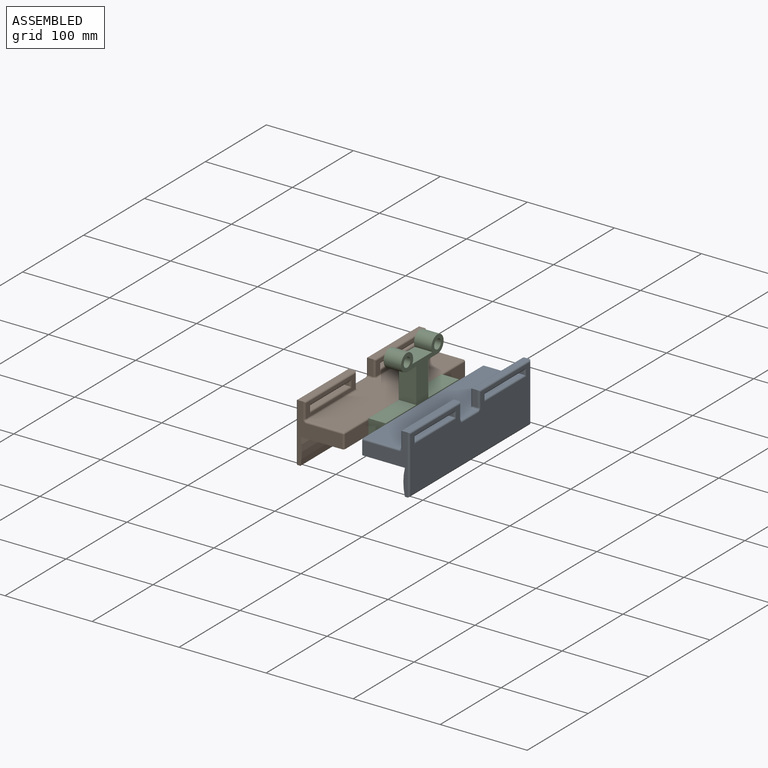
[diagram: assembled view]
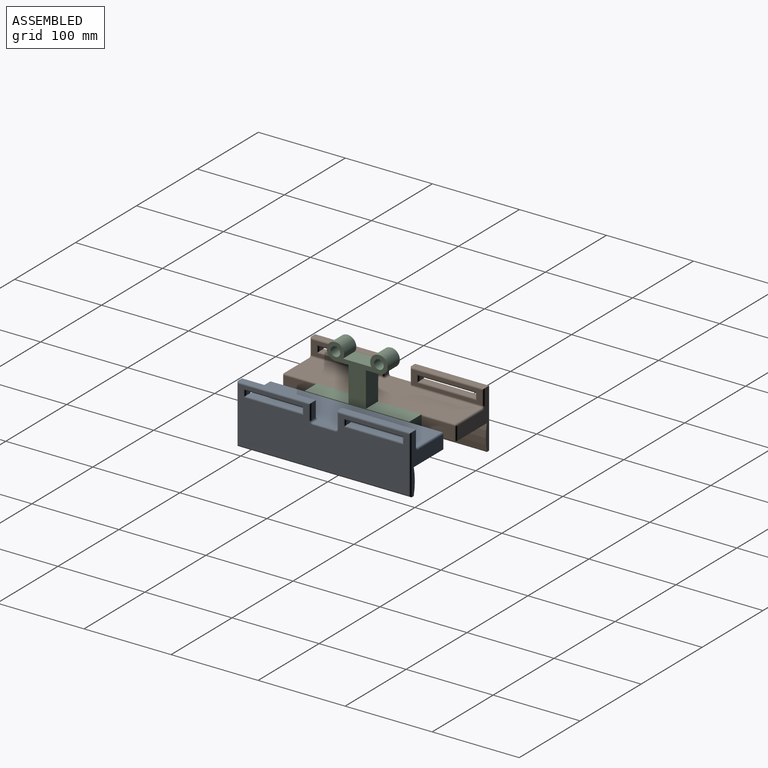
[diagram: assembled view, second angle]
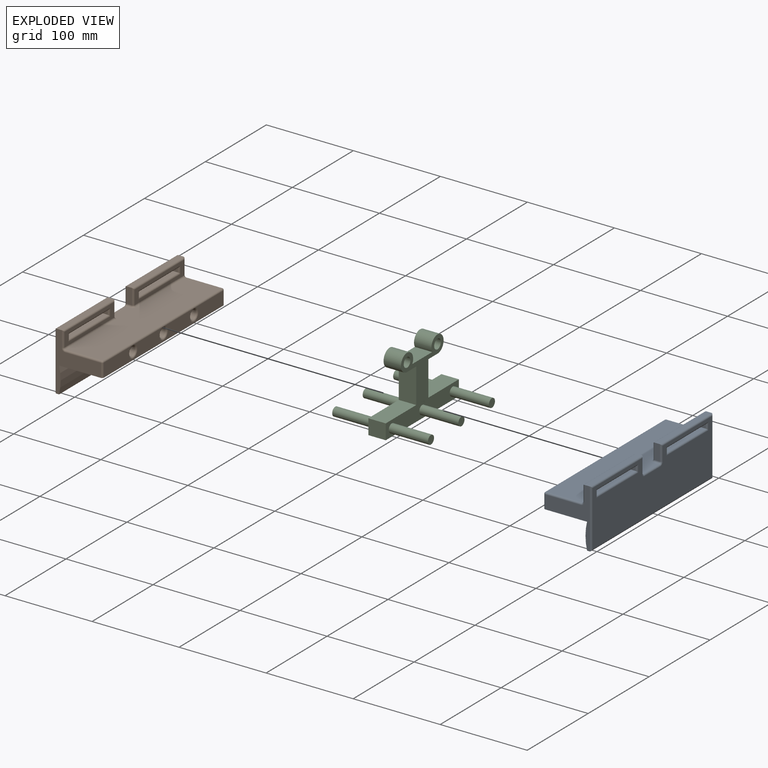
[diagram: exploded view]
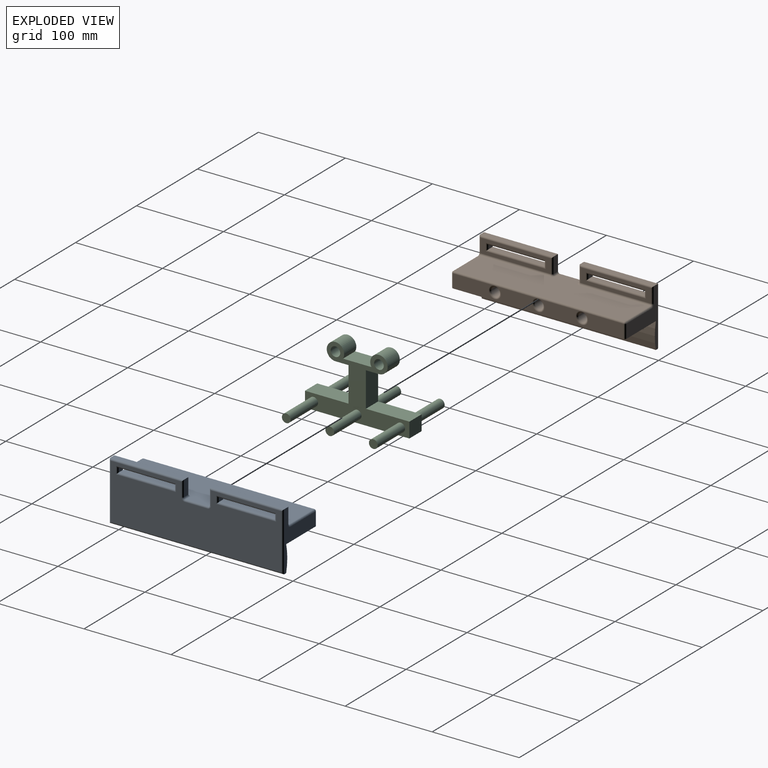
[diagram: exploded view, second angle]
ASSEMBLY  parts=3 mates=2
PART A: 78 faces, bbox 55x200x67.5 mm
  f0: plane 196x63.5mm, normal (1,0,0), area 10530.9mm2, adj f28,f29,f30,f32,f33,f37,f38,f41
  f1: plane 81x16mm, normal (-1,0,0), area 675mm2, adj f31,f36,f39,f40,f62,f63,f64,f65
  f2: plane 81x16mm, normal (-1,0,0), area 675mm2, adj f47,f53,f57,f58,f66,f67,f68,f69
  f3: plane 196x51mm, normal (0,0,1), area 8302.9mm2, adj f34,f35,f39,f42,f45,f48,f54,f55
  f4: plane 200x3mm, normal (0,0,-1), area 600mm2, adj f7,f8,f9,f29
  f5: plane 196x15.5mm, normal (-1,0,0), area 2560mm2, adj f6,f46,f50,f51,f52,f55,f56
  f6: plane 200x50mm, normal (0,0,-1), area 9998.3mm2, adj f5,f7,f8,f9,f46,f56
  f7: cylinder r=65mm len=200mm, axis (0,1,0), area 6054.6mm2, adj f4,f6,f8,f9
  f8: plane 67.5x51mm, normal (0,-1,0), area 1051.1mm2, adj f4,f6,f7,f10,f28,f40,f43,f45
  f9: plane 67.5x51mm, normal (0,1,0), area 1051.1mm2, adj f4,f6,f7,f12,f32,f56,f57,f60
  f10: plane 85x6mm, normal (0,0,1), area 510mm2, adj f8,f11,f30,f36
  f11: plane 18x6mm, normal (0,1,0), area 108mm2, adj f10,f31,f33,f34
  f12: plane 85x6mm, normal (0,0,1), area 510mm2, adj f9,f13,f37,f53
  f13: plane 18x6mm, normal (0,-1,0), area 108mm2, adj f12,f41,f47,f48
  f14: plane 65x6mm, normal (0,0,-1), area 390mm2, adj f15,f17,f69,f70
  f15: plane 6x5mm, normal (0,1,0), area 30mm2, adj f14,f16,f67,f72
  f16: plane 65x6mm, normal (0,0,1), area 390mm2, adj f15,f17,f66,f73
  f17: plane 6x5mm, normal (0,-1,0), area 30mm2, adj f14,f16,f68,f71
  f18: plane 65x6mm, normal (0,0,-1), area 390mm2, adj f19,f21,f65,f76
  f19: plane 6x5mm, normal (0,1,0), area 30mm2, adj f18,f20,f64,f77
  f20: plane 65x6mm, normal (0,0,1), area 390mm2, adj f19,f21,f62,f75
  f21: plane 6x5mm, normal (0,-1,0), area 30mm2, adj f18,f20,f63,f74
  f22: cylinder r=5.15mm len=43mm, axis (-1,0,0), area 1391.4mm2, adj f23,f51
  f23: plane 10.3x10.3mm, normal (-1,0,0), area 83.3mm2, adj f22
  f24: cylinder r=5.15mm len=43mm, axis (-1,0,0), area 1391.4mm2, adj f25,f50
  f25: plane 10.3x10.3mm, normal (-1,0,0), area 83.3mm2, adj f24
  f26: cylinder r=5.15mm len=43mm, axis (-1,0,0), area 1391.4mm2, adj f27,f52
  f27: plane 10.3x10.3mm, normal (-1,0,0), area 83.3mm2, adj f26
  f28: cylinder r=2mm len=67.5mm, axis (0,0,-1), area 207.5mm2, adj f0,f8,f29,f30
  f29: cylinder r=2mm len=200mm, axis (0,1,0), area 623.8mm2, adj f0,f4,f28,f32
  f30: cylinder r=2mm len=85mm, axis (0,1,0), area 262.5mm2, adj f0,f10,f28,f33
  f31: cylinder r=2mm len=18mm, axis (0,0,-1), area 54.3mm2, adj f1,f11,f35,f36
  f32: cylinder r=2mm len=67.5mm, axis (0,0,1), area 207.5mm2, adj f0,f9,f29,f37
  f33: cylinder r=2mm len=18mm, axis (0,0,1), area 54.3mm2, adj f0,f11,f30,f38
  f34: cylinder r=2mm len=6mm, axis (1,0,0), area 18.8mm2, adj f3,f11,f35,f38
  f35: torus R=4mm, axis (0,0,1), area 13.5mm2, adj f3,f31,f34,f39
  f36: cylinder r=2mm len=85mm, axis (0,1,0), area 262.5mm2, adj f1,f10,f31,f40
  f37: cylinder r=2mm len=85mm, axis (0,1,0), area 262.5mm2, adj f0,f12,f32,f41
  f38: torus R=4mm, axis (1,0,0), area 13.5mm2, adj f0,f33,f34,f42
  f39: cylinder r=2mm len=81mm, axis (0,-1,0), area 254.5mm2, adj f1,f3,f35,f43
  f40: cylinder r=2mm len=18mm, axis (0,0,1), area 54.3mm2, adj f1,f8,f36,f43
  f41: cylinder r=2mm len=18mm, axis (0,0,-1), area 54.3mm2, adj f0,f13,f37,f44
  f42: cylinder r=2mm len=26mm, axis (0,1,0), area 81.7mm2, adj f0,f3,f38,f44
  f43: torus R=4mm, axis (0,-1,0), area 13.5mm2, adj f8,f39,f40,f45
  f44: torus R=4mm, axis (1,0,0), area 13.5mm2, adj f0,f41,f42,f48
  f45: cylinder r=2mm len=41mm, axis (1,0,0), area 128.8mm2, adj f3,f8,f43,f49
  f46: cylinder r=2mm len=15.5mm, axis (0,0,1), area 48.7mm2, adj f5,f6,f8,f49
  f47: cylinder r=2mm len=18mm, axis (0,0,-1), area 54.3mm2, adj f2,f13,f53,f54
  f48: cylinder r=2mm len=6mm, axis (-1,0,0), area 18.8mm2, adj f3,f13,f44,f54
  f49: sphere r=2mm, area 6.3mm2, adj f45,f46,f55
  f50: torus R=7.15mm, axis (-1,0,0), area 115.4mm2, adj f5,f24,f55
  f51: torus R=7.15mm, axis (-1,0,0), area 115.4mm2, adj f5,f22,f55
  f52: torus R=7.15mm, axis (-1,0,0), area 115.4mm2, adj f5,f26,f55
  f53: cylinder r=2mm len=85mm, axis (0,-1,0), area 262.5mm2, adj f2,f12,f47,f57
  f54: torus R=4mm, axis (0,0,1), area 13.5mm2, adj f3,f47,f48,f58
  f55: cylinder r=2mm len=196mm, axis (0,1,0), area 613.9mm2, adj f3,f5,f49,f50,f51,f52,f59
  f56: cylinder r=2mm len=15.5mm, axis (0,0,-1), area 48.7mm2, adj f5,f6,f9,f59
  f57: cylinder r=2mm len=18mm, axis (0,0,1), area 54.3mm2, adj f2,f9,f53,f60
  f58: cylinder r=2mm len=81mm, axis (0,-1,0), area 254.5mm2, adj f2,f3,f54,f60
  f59: sphere r=2mm, area 6.3mm2, adj f55,f56,f61
  f60: torus R=4mm, axis (0,-1,0), area 13.5mm2, adj f9,f57,f58,f61
  f61: cylinder r=2mm len=41mm, axis (-1,0,0), area 128.8mm2, adj f3,f9,f59,f60
  f62: cylinder r=2mm len=69mm, axis (0,1,0), area 208.8mm2, adj f1,f20,f63,f64
  f63: cylinder r=2mm len=9mm, axis (0,0,1), area 20.3mm2, adj f1,f21,f62,f65
  f64: cylinder r=2mm len=9mm, axis (0,0,-1), area 20.3mm2, adj f1,f19,f62,f65
  f65: cylinder r=2mm len=69mm, axis (0,-1,0), area 208.8mm2, adj f1,f18,f63,f64
  f66: cylinder r=2mm len=69mm, axis (0,1,0), area 208.8mm2, adj f2,f16,f67,f68
  f67: cylinder r=2mm len=9mm, axis (0,0,-1), area 20.3mm2, adj f2,f15,f66,f69
  f68: cylinder r=2mm len=9mm, axis (0,0,1), area 20.3mm2, adj f2,f17,f66,f69
  f69: cylinder r=2mm len=69mm, axis (0,-1,0), area 208.8mm2, adj f2,f14,f67,f68
  f70: cylinder r=2mm len=69mm, axis (0,1,0), area 208.8mm2, adj f0,f14,f71,f72
  f71: cylinder r=2mm len=9mm, axis (0,0,-1), area 20.3mm2, adj f0,f17,f70,f73
  f72: cylinder r=2mm len=9mm, axis (0,0,1), area 20.3mm2, adj f0,f15,f70,f73
  f73: cylinder r=2mm len=69mm, axis (0,-1,0), area 208.8mm2, adj f0,f16,f71,f72
  f74: cylinder r=2mm len=9mm, axis (0,0,-1), area 20.3mm2, adj f0,f21,f75,f76
  f75: cylinder r=2mm len=69mm, axis (0,-1,0), area 208.8mm2, adj f0,f20,f74,f77
  f76: cylinder r=2mm len=69mm, axis (0,1,0), area 208.8mm2, adj f0,f18,f74,f77
  f77: cylinder r=2mm len=9mm, axis (0,0,1), area 20.3mm2, adj f0,f19,f75,f76
PART B: 78 faces, bbox 55x200x67.5 mm
  f0: plane 196x63.5mm, normal (-1,0,0), area 10530.9mm2, adj f28,f29,f30,f32,f33,f37,f38,f41
  f1: plane 81x16mm, normal (1,0,0), area 675mm2, adj f31,f36,f39,f40,f62,f63,f64,f65
  f2: plane 81x16mm, normal (1,0,0), area 675mm2, adj f47,f53,f57,f58,f66,f67,f68,f69
  f3: plane 196x51mm, normal (0,0,1), area 8302.9mm2, adj f34,f35,f39,f42,f45,f48,f54,f55
  f4: plane 200x3mm, normal (0,0,-1), area 600mm2, adj f7,f8,f9,f29
  f5: plane 196x15.5mm, normal (1,0,0), area 2560mm2, adj f6,f46,f50,f51,f52,f55,f56
  f6: plane 200x50mm, normal (0,0,-1), area 9998.3mm2, adj f5,f7,f8,f9,f46,f56
  f7: cylinder r=65mm len=200mm, axis (0,1,0), area 6054.6mm2, adj f4,f6,f8,f9
  f8: plane 67.5x51mm, normal (0,-1,0), area 1051.1mm2, adj f4,f6,f7,f10,f28,f40,f43,f45
  f9: plane 67.5x51mm, normal (0,1,0), area 1051.1mm2, adj f4,f6,f7,f12,f32,f56,f57,f60
  f10: plane 85x6mm, normal (0,0,1), area 510mm2, adj f8,f11,f30,f36
  f11: plane 18x6mm, normal (0,1,0), area 108mm2, adj f10,f31,f33,f34
  f12: plane 85x6mm, normal (0,0,1), area 510mm2, adj f9,f13,f37,f53
  f13: plane 18x6mm, normal (0,-1,0), area 108mm2, adj f12,f41,f47,f48
  f14: plane 65x6mm, normal (0,0,-1), area 390mm2, adj f15,f17,f69,f70
  f15: plane 6x5mm, normal (0,1,0), area 30mm2, adj f14,f16,f67,f72
  f16: plane 65x6mm, normal (0,0,1), area 390mm2, adj f15,f17,f66,f73
  f17: plane 6x5mm, normal (0,-1,0), area 30mm2, adj f14,f16,f68,f71
  f18: plane 65x6mm, normal (0,0,-1), area 390mm2, adj f19,f21,f65,f76
  f19: plane 6x5mm, normal (0,1,0), area 30mm2, adj f18,f20,f64,f77
  f20: plane 65x6mm, normal (0,0,1), area 390mm2, adj f19,f21,f62,f75
  f21: plane 6x5mm, normal (0,-1,0), area 30mm2, adj f18,f20,f63,f74
  f22: cylinder r=5.15mm len=43mm, axis (1,0,0), area 1391.4mm2, adj f23,f51
  f23: plane 10.3x10.3mm, normal (1,0,0), area 83.3mm2, adj f22
  f24: cylinder r=5.15mm len=43mm, axis (1,0,0), area 1391.4mm2, adj f25,f50
  f25: plane 10.3x10.3mm, normal (1,0,0), area 83.3mm2, adj f24
  f26: cylinder r=5.15mm len=43mm, axis (1,0,0), area 1391.4mm2, adj f27,f52
  f27: plane 10.3x10.3mm, normal (1,0,0), area 83.3mm2, adj f26
  f28: cylinder r=2mm len=67.5mm, axis (0,0,-1), area 207.5mm2, adj f0,f8,f29,f30
  f29: cylinder r=2mm len=200mm, axis (0,1,0), area 623.8mm2, adj f0,f4,f28,f32
  f30: cylinder r=2mm len=85mm, axis (0,1,0), area 262.5mm2, adj f0,f10,f28,f33
  f31: cylinder r=2mm len=18mm, axis (0,0,-1), area 54.3mm2, adj f1,f11,f35,f36
  f32: cylinder r=2mm len=67.5mm, axis (0,0,1), area 207.5mm2, adj f0,f9,f29,f37
  f33: cylinder r=2mm len=18mm, axis (0,0,1), area 54.3mm2, adj f0,f11,f30,f38
  f34: cylinder r=2mm len=6mm, axis (-1,0,0), area 18.8mm2, adj f3,f11,f35,f38
  f35: torus R=4mm, axis (0,0,1), area 13.5mm2, adj f3,f31,f34,f39
  f36: cylinder r=2mm len=85mm, axis (0,1,0), area 262.5mm2, adj f1,f10,f31,f40
  f37: cylinder r=2mm len=85mm, axis (0,1,0), area 262.5mm2, adj f0,f12,f32,f41
  f38: torus R=4mm, axis (-1,0,0), area 13.5mm2, adj f0,f33,f34,f42
  f39: cylinder r=2mm len=81mm, axis (0,-1,0), area 254.5mm2, adj f1,f3,f35,f43
  f40: cylinder r=2mm len=18mm, axis (0,0,1), area 54.3mm2, adj f1,f8,f36,f43
  f41: cylinder r=2mm len=18mm, axis (0,0,-1), area 54.3mm2, adj f0,f13,f37,f44
  f42: cylinder r=2mm len=26mm, axis (0,1,0), area 81.7mm2, adj f0,f3,f38,f44
  f43: torus R=4mm, axis (0,-1,0), area 13.5mm2, adj f8,f39,f40,f45
  f44: torus R=4mm, axis (-1,0,0), area 13.5mm2, adj f0,f41,f42,f48
  f45: cylinder r=2mm len=41mm, axis (-1,0,0), area 128.8mm2, adj f3,f8,f43,f49
  f46: cylinder r=2mm len=15.5mm, axis (0,0,1), area 48.7mm2, adj f5,f6,f8,f49
  f47: cylinder r=2mm len=18mm, axis (0,0,-1), area 54.3mm2, adj f2,f13,f53,f54
  f48: cylinder r=2mm len=6mm, axis (1,0,0), area 18.8mm2, adj f3,f13,f44,f54
  f49: sphere r=2mm, area 6.3mm2, adj f45,f46,f55
  f50: torus R=7.15mm, axis (1,0,0), area 115.4mm2, adj f5,f24,f55
  f51: torus R=7.15mm, axis (1,0,0), area 115.4mm2, adj f5,f22,f55
  f52: torus R=7.15mm, axis (1,0,0), area 115.4mm2, adj f5,f26,f55
  f53: cylinder r=2mm len=85mm, axis (0,-1,0), area 262.5mm2, adj f2,f12,f47,f57
  f54: torus R=4mm, axis (0,0,1), area 13.5mm2, adj f3,f47,f48,f58
  f55: cylinder r=2mm len=196mm, axis (0,1,0), area 613.9mm2, adj f3,f5,f49,f50,f51,f52,f59
  f56: cylinder r=2mm len=15.5mm, axis (0,0,-1), area 48.7mm2, adj f5,f6,f9,f59
  f57: cylinder r=2mm len=18mm, axis (0,0,1), area 54.3mm2, adj f2,f9,f53,f60
  f58: cylinder r=2mm len=81mm, axis (0,-1,0), area 254.5mm2, adj f2,f3,f54,f60
  f59: sphere r=2mm, area 6.3mm2, adj f55,f56,f61
  f60: torus R=4mm, axis (0,-1,0), area 13.5mm2, adj f9,f57,f58,f61
  f61: cylinder r=2mm len=41mm, axis (1,0,0), area 128.8mm2, adj f3,f9,f59,f60
  f62: cylinder r=2mm len=69mm, axis (0,1,0), area 208.8mm2, adj f1,f20,f63,f64
  f63: cylinder r=2mm len=9mm, axis (0,0,1), area 20.3mm2, adj f1,f21,f62,f65
  f64: cylinder r=2mm len=9mm, axis (0,0,-1), area 20.3mm2, adj f1,f19,f62,f65
  f65: cylinder r=2mm len=69mm, axis (0,-1,0), area 208.8mm2, adj f1,f18,f63,f64
  f66: cylinder r=2mm len=69mm, axis (0,1,0), area 208.8mm2, adj f2,f16,f67,f68
  f67: cylinder r=2mm len=9mm, axis (0,0,-1), area 20.3mm2, adj f2,f15,f66,f69
  f68: cylinder r=2mm len=9mm, axis (0,0,1), area 20.3mm2, adj f2,f17,f66,f69
  f69: cylinder r=2mm len=69mm, axis (0,-1,0), area 208.8mm2, adj f2,f14,f67,f68
  f70: cylinder r=2mm len=69mm, axis (0,1,0), area 208.8mm2, adj f0,f14,f71,f72
  f71: cylinder r=2mm len=9mm, axis (0,0,-1), area 20.3mm2, adj f0,f17,f70,f73
  f72: cylinder r=2mm len=9mm, axis (0,0,1), area 20.3mm2, adj f0,f15,f70,f73
  f73: cylinder r=2mm len=69mm, axis (0,-1,0), area 208.8mm2, adj f0,f16,f71,f72
  f74: cylinder r=2mm len=9mm, axis (0,0,-1), area 20.3mm2, adj f0,f21,f75,f76
  f75: cylinder r=2mm len=69mm, axis (0,-1,0), area 208.8mm2, adj f0,f20,f74,f77
  f76: cylinder r=2mm len=69mm, axis (0,1,0), area 208.8mm2, adj f0,f18,f74,f77
  f77: cylinder r=2mm len=9mm, axis (0,0,1), area 20.3mm2, adj f0,f19,f75,f76
PART C: 28 faces, bbox 120x110x77.5 mm
  f0: plane 50x20mm, normal (0,0,1), area 1000mm2, adj f7,f11,f18,f19
  f1: cylinder r=5mm len=45mm, axis (0,1,0), area 1413.7mm2, adj f2,f11
  f2: plane 10x10mm, normal (0,-1,0), area 78.5mm2, adj f1
  f3: cylinder r=5mm len=45mm, axis (0,1,0), area 1413.7mm2, adj f4,f11
  f4: plane 10x10mm, normal (0,-1,0), area 78.5mm2, adj f3
  f5: cylinder r=5mm len=45mm, axis (0,1,0), area 1413.7mm2, adj f6,f11
  f6: plane 10x10mm, normal (0,-1,0), area 78.5mm2, adj f5
  f7: plane 20x17.5mm, normal (1,0,0), area 350mm2, adj f0,f10,f11,f18
  f8: plane 50x20mm, normal (0,0,1), area 1000mm2, adj f9,f11,f18,f20
  f9: plane 20x17.5mm, normal (-1,0,0), area 350mm2, adj f8,f10,f11,f18
  f10: plane 120x20mm, normal (0,0,-1), area 2400mm2, adj f7,f9,f11,f18
  f11: plane 120x77.5mm, normal (0,-1,0), area 3291.2mm2, adj f0,f1,f3,f5,f7,f8,f9,f10
  f12: cylinder r=5mm len=45mm, axis (0,-1,0), area 1413.7mm2, adj f13,f18
  f13: plane 10x10mm, normal (0,1,0), area 78.5mm2, adj f12
  f14: cylinder r=5mm len=45mm, axis (0,-1,0), area 1413.7mm2, adj f15,f18
  f15: plane 10x10mm, normal (0,1,0), area 78.5mm2, adj f14
  f16: cylinder r=5mm len=45mm, axis (0,-1,0), area 1413.7mm2, adj f17,f18
  f17: plane 10x10mm, normal (0,1,0), area 78.5mm2, adj f16
  f18: plane 120x77.5mm, normal (0,1,0), area 3291.2mm2, adj f0,f7,f8,f9,f10,f12,f14,f16
  f19: plane 40x20mm, normal (1,0,0), area 800mm2, adj f0,f11,f18,f21
  f20: plane 40x20mm, normal (-1,0,0), area 800mm2, adj f8,f11,f18,f27
  f21: plane 20x15mm, normal (0,0,-1), area 300mm2, adj f11,f18,f19,f22
  f22: cylinder r=10mm len=20mm, axis (0,-1,0), area 1047.2mm2, adj f11,f18,f21,f23
  f23: plane 32.68x20mm, normal (0,0,1), area 653.6mm2, adj f11,f18,f22,f24
  f24: cylinder r=10mm len=20mm, axis (0,-1,0), area 1047.2mm2, adj f11,f18,f23,f27
  f25: cylinder r=5.5mm len=20mm, axis (0,-1,0), area 691.2mm2, adj f11,f18
  f26: cylinder r=5.5mm len=20mm, axis (0,-1,0), area 691.2mm2, adj f11,f18
  f27: plane 20x15mm, normal (0,0,-1), area 300mm2, adj f11,f18,f20,f24
PLACE A t=(36.73,-10.52,-41.71)mm
PLACE B t=(16.73,-10.52,-41.71)mm
PLACE C rot(axis=(0,0,-1),90deg) t=(16.73,-10.52,-42.96)mm
MATE slider A.f22 <-> C.f3  axis (-1,0,0) through (81.73,-10.52,-42.96)mm
MATE slider C.f3 <-> B.f22  axis (-1,0,0) through (-28.27,-10.52,-42.96)mm
